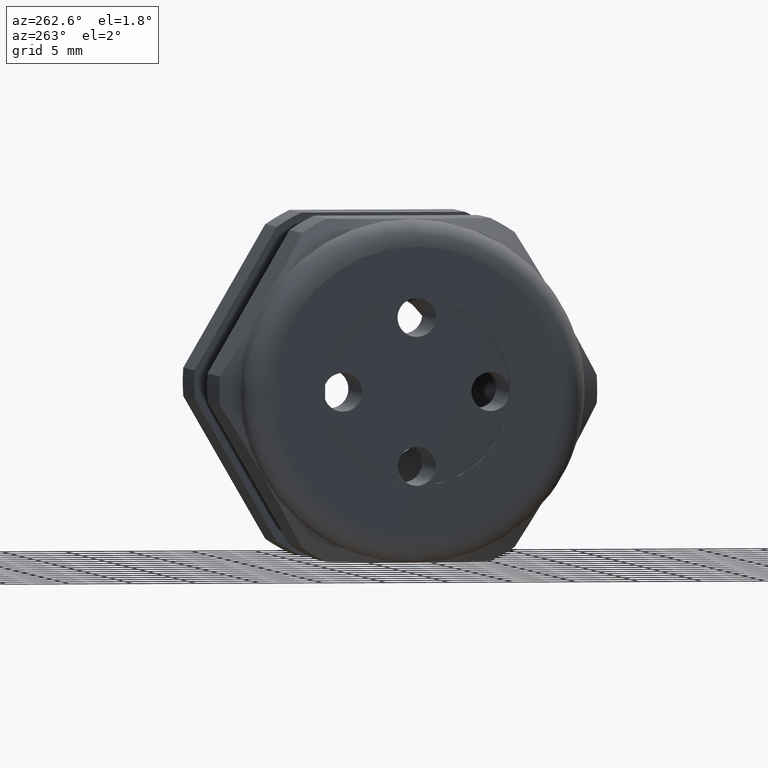
[diagram: clean part render]
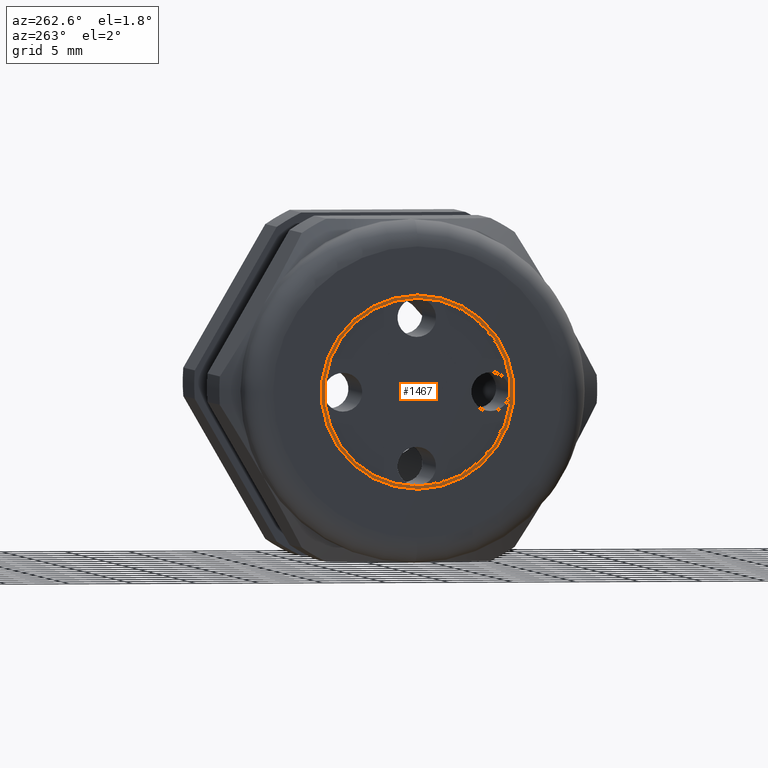
[diagram: same view with one face highlighted and labeled with its STEP entity id]
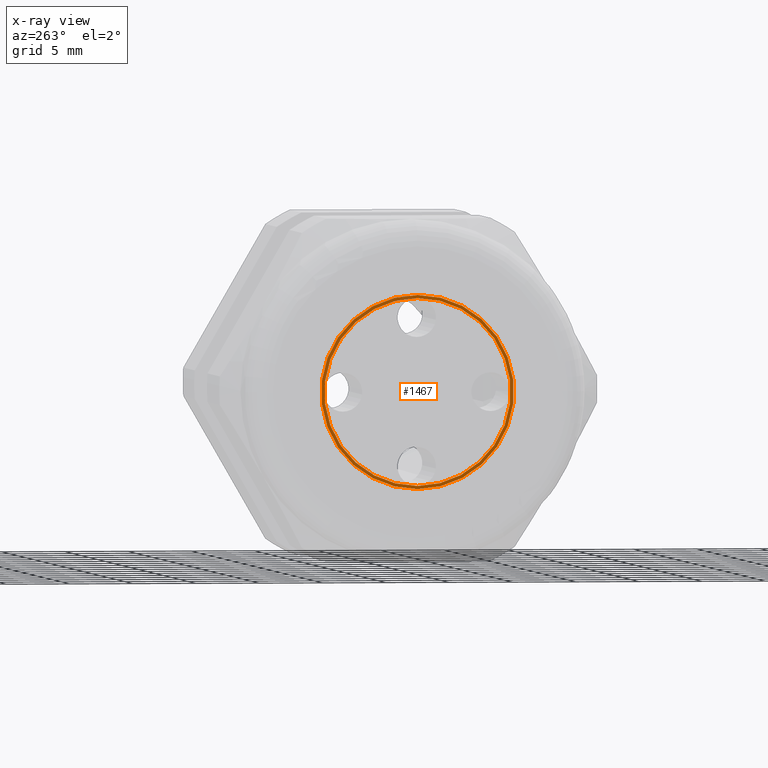
[diagram: x-ray of the same camera — body ghosted, the highlighted face saturated]
A machine part, auxiliary view. The second image highlights one B-rep face of the part: STEP entity #1467.
The next image is the same camera in x-ray: the body ghosted, the highlighted face saturated — about 0% of this face is hidden behind the body in this view.
In plain terms, the highlighted planar face has unit normal (-1, 0, 0).
Its self-contained STEP definition (entity closure, byte-faithful):
#1148 = ORIENTED_EDGE ( 'NONE', *, *, #1437, .F. ) ;
#1339 = EDGE_CURVE ( 'NONE', #1346, #1365, #4324, .T. ) ;
#1346 = VERTEX_POINT ( 'NONE', #4304 ) ;
#1353 = EDGE_CURVE ( 'NONE', #1367, #1361, #4298, .T. ) ;
#1360 = EDGE_CURVE ( 'NONE', #1361, #1367, #4341, .T. ) ;
#1361 = VERTEX_POINT ( 'NONE', #4337 ) ;
#1365 = VERTEX_POINT ( 'NONE', #4336 ) ;
#1367 = VERTEX_POINT ( 'NONE', #4335 ) ;
#1435 = ORIENTED_EDGE ( 'NONE', *, *, #1360, .T. ) ;
#1437 = EDGE_CURVE ( 'NONE', #1365, #1346, #4456, .T. ) ;
#1442 = EDGE_LOOP ( 'NONE', ( #1148, #1445 ) ) ;
#1445 = ORIENTED_EDGE ( 'NONE', *, *, #1339, .F. ) ;
#1456 = EDGE_LOOP ( 'NONE', ( #1435, #1477 ) ) ;
#1467 = ADVANCED_FACE ( 'NONE', ( #4490, #4489 ), #4550, .T. ) ;
#1477 = ORIENTED_EDGE ( 'NONE', *, *, #1353, .T. ) ;
#4294 = DIRECTION ( 'NONE',  ( 0.0000000000000000000, 0.0000000000000000000, 1.000000000000000000 ) ) ;
#4295 = DIRECTION ( 'NONE',  ( -1.000000000000000000, 0.0000000000000000000, 0.0000000000000000000 ) ) ;
#4296 = CARTESIAN_POINT ( 'NONE',  ( -1.409999999999999900, 0.0000000000000000000, 0.0000000000000000000 ) ) ;
#4297 = AXIS2_PLACEMENT_3D ( 'NONE', #4296, #4295, #4294 ) ;
#4298 = CIRCLE ( 'NONE', #4297, 0.2999999999999999300 ) ;
#4304 = CARTESIAN_POINT ( 'NONE',  ( -1.409999999999999900, 3.551475717527323800E-017, -0.2899999999999999200 ) ) ;
#4320 = DIRECTION ( 'NONE',  ( 0.0000000000000000000, 0.0000000000000000000, 1.000000000000000000 ) ) ;
#4321 = DIRECTION ( 'NONE',  ( -1.000000000000000000, 0.0000000000000000000, 0.0000000000000000000 ) ) ;
#4322 = CARTESIAN_POINT ( 'NONE',  ( -1.409999999999999900, 0.0000000000000000000, 0.0000000000000000000 ) ) ;
#4323 = AXIS2_PLACEMENT_3D ( 'NONE', #4322, #4321, #4320 ) ;
#4324 = CIRCLE ( 'NONE', #4323, 0.2899999999999999200 ) ;
#4335 = CARTESIAN_POINT ( 'NONE',  ( -1.409999999999999900, 3.673940397442058900E-017, -0.2999999999999999300 ) ) ;
#4336 = CARTESIAN_POINT ( 'NONE',  ( -1.409999999999999900, 0.0000000000000000000, 0.2899999999999999200 ) ) ;
#4337 = CARTESIAN_POINT ( 'NONE',  ( -1.409999999999999900, 0.0000000000000000000, 0.2999999999999999300 ) ) ;
#4338 = DIRECTION ( 'NONE',  ( 0.0000000000000000000, 0.0000000000000000000, 1.000000000000000000 ) ) ;
#4339 = DIRECTION ( 'NONE',  ( -1.000000000000000000, 0.0000000000000000000, 0.0000000000000000000 ) ) ;
#4340 = AXIS2_PLACEMENT_3D ( 'NONE', #4347, #4339, #4338 ) ;
#4341 = CIRCLE ( 'NONE', #4340, 0.2999999999999999300 ) ;
#4347 = CARTESIAN_POINT ( 'NONE',  ( -1.409999999999999900, 0.0000000000000000000, 0.0000000000000000000 ) ) ;
#4455 = AXIS2_PLACEMENT_3D ( 'NONE', #4517, #4516, #4515 ) ;
#4456 = CIRCLE ( 'NONE', #4455, 0.2899999999999999200 ) ;
#4489 = FACE_OUTER_BOUND ( 'NONE', #1456, .T. ) ;
#4490 = FACE_BOUND ( 'NONE', #1442, .T. ) ;
#4515 = DIRECTION ( 'NONE',  ( 0.0000000000000000000, 0.0000000000000000000, 1.000000000000000000 ) ) ;
#4516 = DIRECTION ( 'NONE',  ( -1.000000000000000000, 0.0000000000000000000, 0.0000000000000000000 ) ) ;
#4517 = CARTESIAN_POINT ( 'NONE',  ( -1.409999999999999900, 0.0000000000000000000, 0.0000000000000000000 ) ) ;
#4546 = DIRECTION ( 'NONE',  ( 0.0000000000000000000, 0.0000000000000000000, 1.000000000000000000 ) ) ;
#4547 = DIRECTION ( 'NONE',  ( -1.000000000000000000, 0.0000000000000000000, 0.0000000000000000000 ) ) ;
#4548 = CARTESIAN_POINT ( 'NONE',  ( -1.409999999999999900, 0.0000000000000000000, 0.0000000000000000000 ) ) ;
#4549 = AXIS2_PLACEMENT_3D ( 'NONE', #4548, #4547, #4546 ) ;
#4550 = PLANE ( 'NONE',  #4549 ) ;